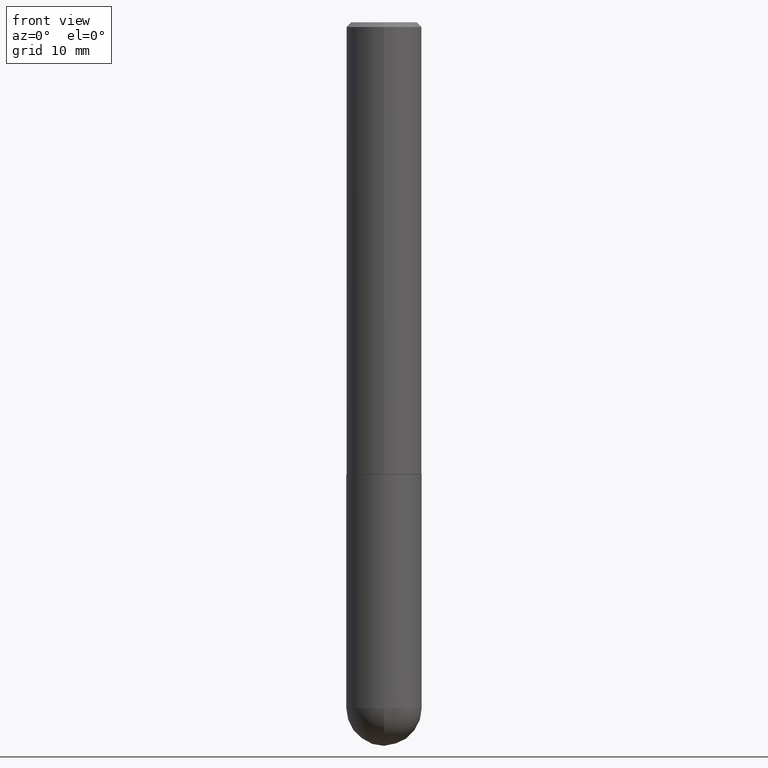
[diagram: clean part render]
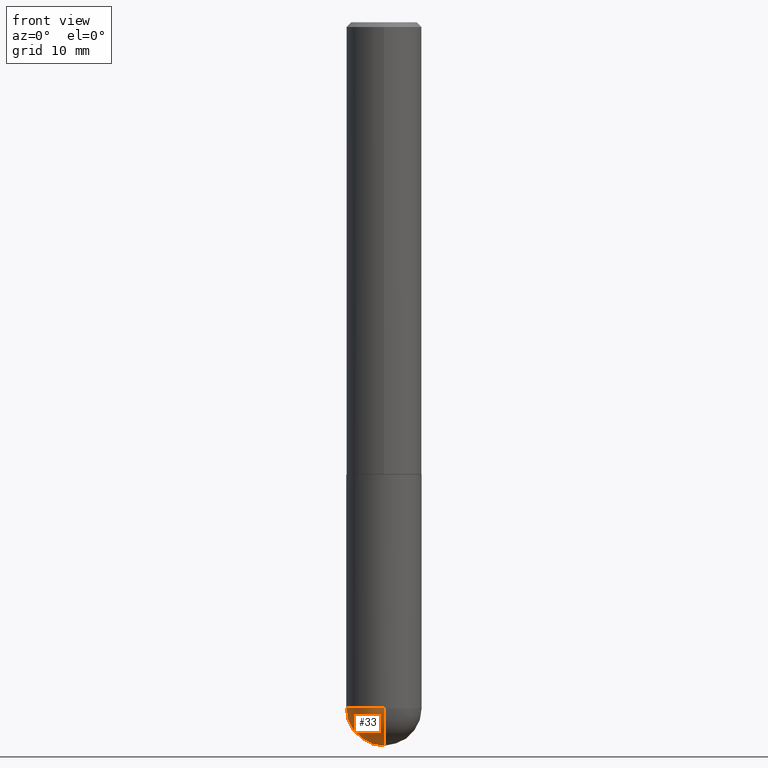
[diagram: same view with one face highlighted and labeled with its STEP entity id]
A machine part, front view. The second image highlights one B-rep face of the part: STEP entity #33.
In plain terms, the highlighted spherical surface has radius 3.9688 mm.
Its self-contained STEP definition (entity closure, byte-faithful):
#20 = DIRECTION ( 'NONE',  ( 6.982962677686265922E-15, 1.000000000000000000, 0.000000000000000000 ) ) ;
#31 = FACE_OUTER_BOUND ( 'NONE', #90, .T. ) ;
#33 = ADVANCED_FACE ( 'NONE', ( #31 ), #386, .T. ) ;
#66 = VERTEX_POINT ( 'NONE', #193 ) ;
#90 = EDGE_LOOP ( 'NONE', ( #383, #211, #154, #134 ) ) ;
#91 = CARTESIAN_POINT ( 'NONE',  ( 6.623182139675095950E-29, -1.040308242547524746E-14, -2.843750000000000000 ) ) ;
#94 = EDGE_CURVE ( 'NONE', #159, #66, #392, .T. ) ;
#96 = CARTESIAN_POINT ( 'NONE',  ( -1.110223024625088698E-15, -0.1562500000000102418, -2.843749999999999556 ) ) ;
#102 = CARTESIAN_POINT ( 'NONE',  ( 6.623182139675095950E-29, -1.040308242547524746E-14, -2.843750000000000000 ) ) ;
#115 = EDGE_CURVE ( 'NONE', #66, #252, #346, .T. ) ;
#131 = DIRECTION ( 'NONE',  ( 1.000000000000000000, -6.982962677686262766E-15, 0.000000000000000000 ) ) ;
#134 = ORIENTED_EDGE ( 'NONE', *, *, #94, .F. ) ;
#136 = EDGE_CURVE ( 'NONE', #150, #252, #330, .T. ) ;
#145 = CARTESIAN_POINT ( 'NONE',  ( 1.091087918388547213E-15, 0.1562499999999898970, -2.843750000000000444 ) ) ;
#147 = DIRECTION ( 'NONE',  ( -2.445468806185136597E-29, 3.491481338843145583E-15, 1.000000000000000000 ) ) ;
#150 = VERTEX_POINT ( 'NONE', #344 ) ;
#154 = ORIENTED_EDGE ( 'NONE', *, *, #115, .F. ) ;
#159 = VERTEX_POINT ( 'NONE', #145 ) ;
#162 = AXIS2_PLACEMENT_3D ( 'NONE', #376, #147, #280 ) ;
#169 = EDGE_CURVE ( 'NONE', #150, #159, #199, .T. ) ;
#193 = CARTESIAN_POINT ( 'NONE',  ( -0.1562500000000000000, -7.127490759207891394E-15, -2.843750000000000000 ) ) ;
#199 = CIRCLE ( 'NONE', #274, 0.1562500000000001110 ) ;
#211 = ORIENTED_EDGE ( 'NONE', *, *, #136, .T. ) ;
#214 = DIRECTION ( 'NONE',  ( -1.000000000000000000, 7.105427357601001070E-15, -4.926315508542082329E-29 ) ) ;
#218 = DIRECTION ( 'NONE',  ( 6.982962677686265922E-15, 1.000000000000000000, -3.496765431890254553E-15 ) ) ;
#245 = CARTESIAN_POINT ( 'NONE',  ( 6.623182139675095950E-29, -1.040308242547524746E-14, -2.843750000000000000 ) ) ;
#252 = VERTEX_POINT ( 'NONE', #96 ) ;
#256 = AXIS2_PLACEMENT_3D ( 'NONE', #91, #214, #411 ) ;
#260 = DIRECTION ( 'NONE',  ( -2.445468806185136597E-29, 3.491481338843145583E-15, 1.000000000000000000 ) ) ;
#265 = DIRECTION ( 'NONE',  ( -1.000000000000000000, 6.982962677686265922E-15, -4.883557194083112901E-29 ) ) ;
#274 = AXIS2_PLACEMENT_3D ( 'NONE', #245, #370, #20 ) ;
#280 = DIRECTION ( 'NONE',  ( 1.000000000000000000, -6.982962677686262766E-15, 0.000000000000000000 ) ) ;
#326 = CARTESIAN_POINT ( 'NONE',  ( 6.954301917588981076E-29, -9.928900057335195583E-15, -2.843750000000000000 ) ) ;
#330 = CIRCLE ( 'NONE', #256, 0.1562500000000001110 ) ;
#344 = CARTESIAN_POINT ( 'NONE',  ( 7.011967627275736641E-29, -1.093905883155115073E-14, -3.000000000000000444 ) ) ;
#346 = CIRCLE ( 'NONE', #162, 0.1562500000000000000 ) ;
#370 = DIRECTION ( 'NONE',  ( 1.000000000000000000, -6.982962677686265922E-15, 4.883557194083112340E-29 ) ) ;
#371 = AXIS2_PLACEMENT_3D ( 'NONE', #102, #265, #218 ) ;
#376 = CARTESIAN_POINT ( 'NONE',  ( 6.954301917588981076E-29, -9.928900057335195583E-15, -2.843750000000000000 ) ) ;
#383 = ORIENTED_EDGE ( 'NONE', *, *, #169, .F. ) ;
#386 = SPHERICAL_SURFACE ( 'NONE', #371, 0.1562500000000001110 ) ;
#392 = CIRCLE ( 'NONE', #398, 0.1562500000000000000 ) ;
#398 = AXIS2_PLACEMENT_3D ( 'NONE', #326, #260, #131 ) ;
#411 = DIRECTION ( 'NONE',  ( -7.105427357601000281E-15, -1.000000000000000000, 0.000000000000000000 ) ) ;